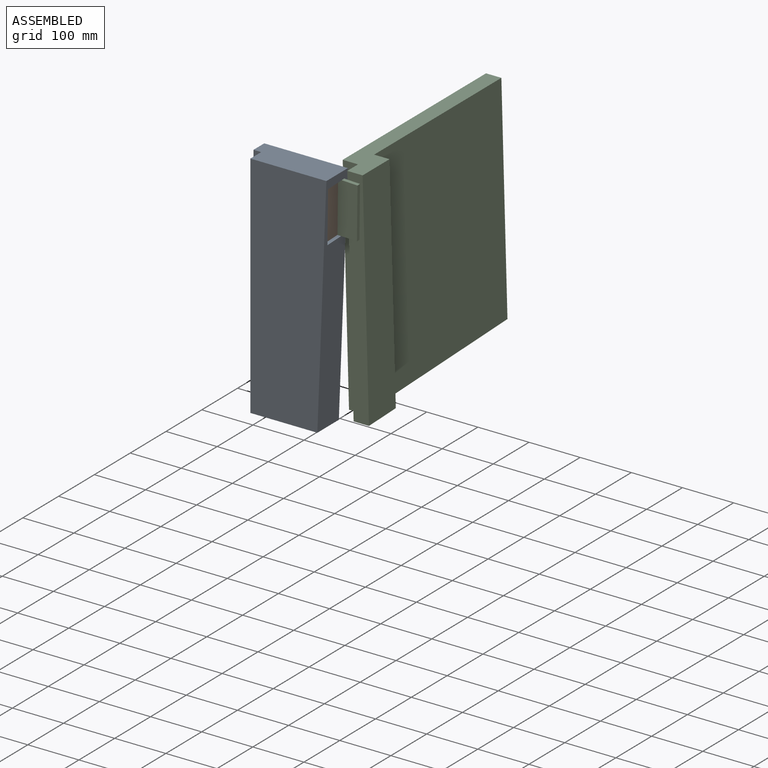
[diagram: assembled view]
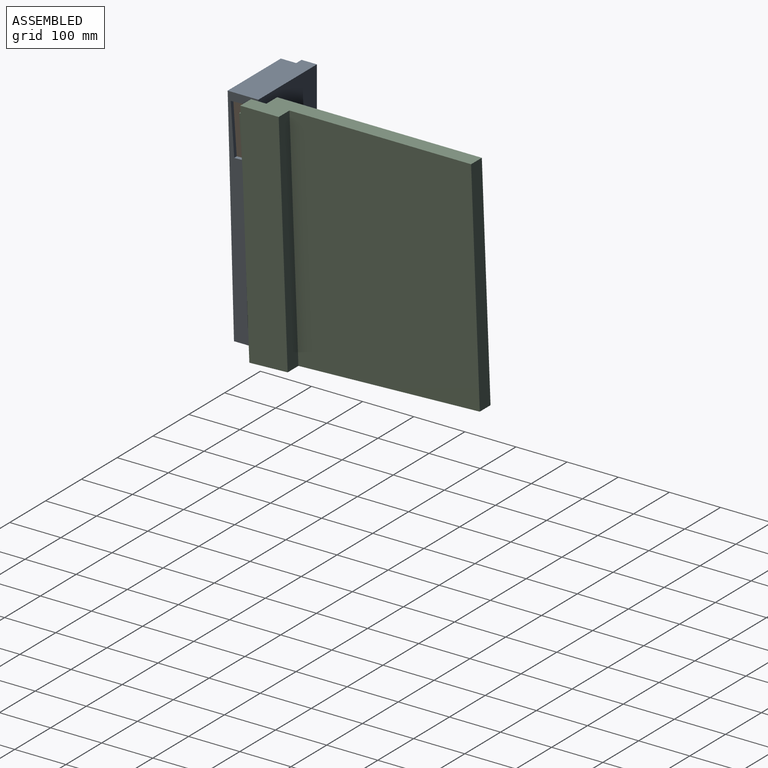
[diagram: assembled view, second angle]
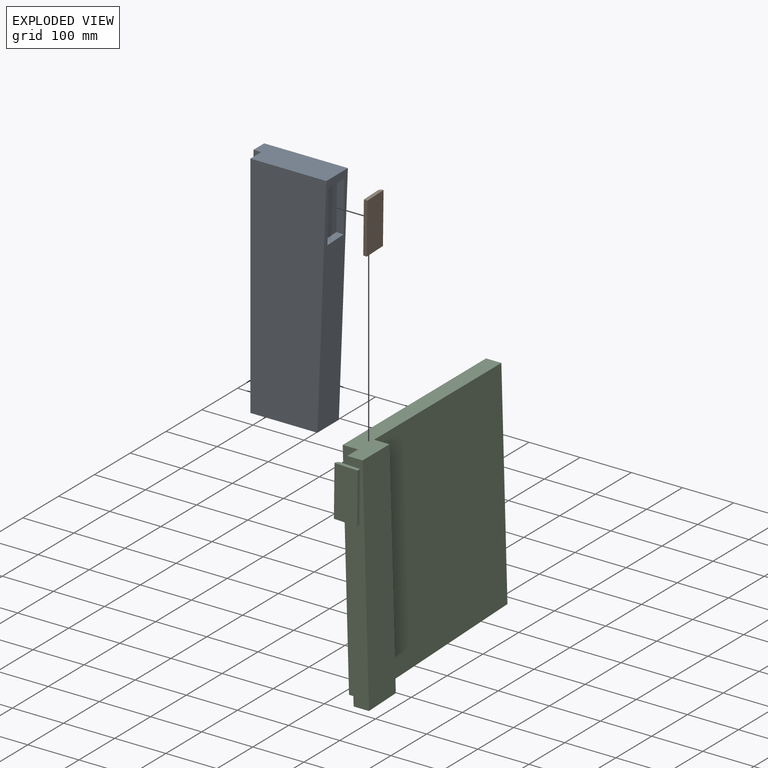
[diagram: exploded view]
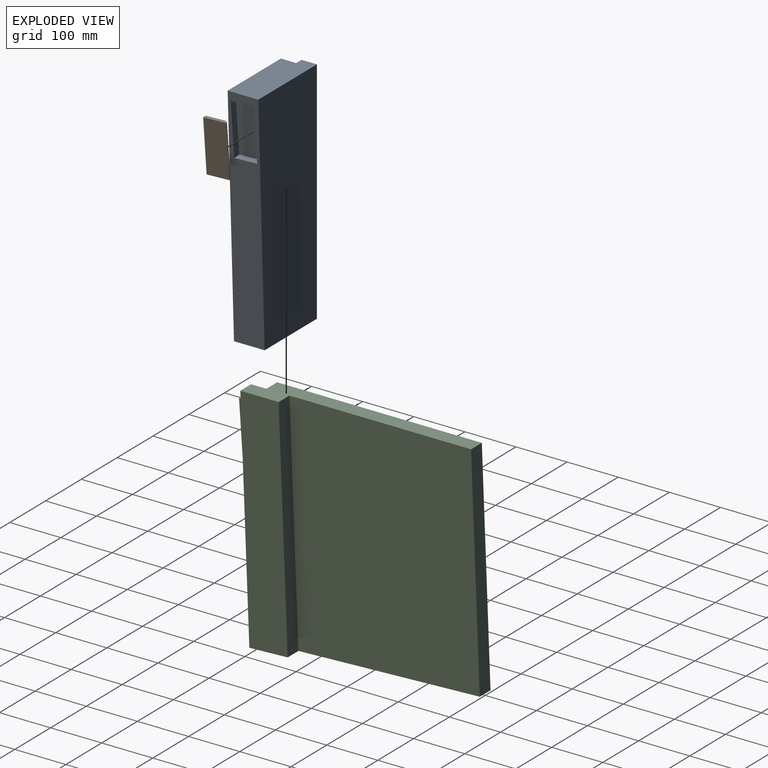
[diagram: exploded view, second angle]
ASSEMBLY  parts=3 mates=2
PART A: 13 faces, bbox 163.6x60x449.7 mm
  f0: plane 449.65x15mm, normal (0,-1,0), area 6744.8mm2, adj f1,f2,f3,f10
  f1: plane 163.6x60mm, normal (0,0,1), area 9366.2mm2, adj f0,f2,f4,f5,f10,f11
  f2: plane 449.65x30mm, normal (-1,0,0), area 13489.6mm2, adj f0,f1,f3,f5
  f3: plane 145.94x60mm, normal (0,0,-1), area 8306.2mm2, adj f0,f2,f4,f5,f10,f11
  f4: plane 449.65x60mm, normal (1,0,-0.04), area 22428mm2, adj f1,f3,f5,f6,f7,f8,f11,f12
  f5: plane 449.65x163.6mm, normal (0,1,0), area 69592.6mm2, adj f1,f2,f3,f4
  f6: plane 44.97x14.06mm, normal (0.04,-0.04,1), area 630mm2, adj f4,f7,f9,f12
  f7: plane 101.99x17.98mm, normal (0,-1,-0.04), area 1422.4mm2, adj f4,f6,f8,f9
  f8: plane 44.97x14.06mm, normal (-0.04,0.04,-1), area 630mm2, adj f4,f7,f9,f12
  f9: plane 103.21x48.95mm, normal (1,0,-0.04), area 4572mm2, adj f6,f7,f8,f12
  f10: plane 449.65x30mm, normal (-1,0,0), area 13489.6mm2, adj f0,f1,f3,f11
  f11: plane 449.65x148.6mm, normal (0,-1,0), area 62847.8mm2, adj f1,f3,f4,f10
  f12: plane 101.99x17.98mm, normal (0,1,0.04), area 1422.4mm2, adj f4,f6,f8,f9
PART B: 6 faces, bbox 11x49x103.3 mm
  f0: plane 44.97x7.06mm, normal (-0.04,0.04,-1), area 304.5mm2, adj f1,f3,f4,f5
  f1: plane 101.72x10.98mm, normal (0,-1,-0.04), area 711.2mm2, adj f0,f2,f3,f4
  f2: plane 44.97x7.06mm, normal (0.04,-0.04,1), area 304.5mm2, adj f1,f3,f4,f5
  f3: plane 102.93x41.96mm, normal (-1,0,0.04), area 3860.8mm2, adj f0,f1,f2,f5
  f4: plane 103.21x48.95mm, normal (1,0,-0.04), area 4572mm2, adj f0,f1,f2,f5
  f5: cylinder r=7mm len=101.56mm, axis (-0.04,0.04,-1), area 1117.2mm2, adj f0,f2,f3,f4
PART C: 16 faces, bbox 446.7x60x466.5 mm
  f0: plane 432.77x30mm, normal (1,0,-0.04), area 12993.2mm2, adj f2,f5,f7,f15
  f1: plane 452.6x92.49mm, normal (0,-1,0), area 33639.5mm2, adj f3,f5,f6,f15
  f2: plane 464.18x416.7mm, normal (0,1,0), area 176385.3mm2, adj f0,f5,f8,f15
  f3: plane 449.65x30mm, normal (-1,0,0.04), area 11216.3mm2, adj f1,f4,f5,f9,f10,f11,f15
  f4: plane 450.83x47.6mm, normal (0,1,0), area 13482.3mm2, adj f3,f5,f8,f12,f15
  f5: plane 429.67x60mm, normal (-0.04,0,-1), area 14250mm2, adj f0,f1,f2,f3,f4,f6,f7,f8
  f6: plane 446.71x30mm, normal (1,0,-0.04), area 13411.6mm2, adj f1,f5,f7,f15
  f7: plane 460.65x371.73mm, normal (0,-1,0), area 156228.1mm2, adj f0,f5,f6,f15
  f8: plane 448.48x30mm, normal (-1,0,0.04), area 13464.6mm2, adj f2,f4,f5,f15
  f9: plane 44.97x7.05mm, normal (-0.04,0.04,-1), area 304.5mm2, adj f3,f11,f12,f13,f14
  f10: plane 44.97x7.05mm, normal (0.04,-0.04,1), area 304.5mm2, adj f3,f11,f12,f13,f14
  f11: plane 101.72x10.98mm, normal (0,-1,-0.04), area 711.2mm2, adj f3,f9,f10,f13
  f12: plane 102.13x17.51mm, normal (1,0,-0.04), area 1577.1mm2, adj f4,f9,f10,f14
  f13: plane 103.21x48.95mm, normal (-1,0,0.04), area 4572mm2, adj f9,f10,f11,f14
  f14: cylinder r=7mm len=101.99mm, axis (-0.04,0.04,-1), area 1117.2mm2, adj f9,f10,f12,f13
  f15: plane 429.01x60mm, normal (0.08,0,1), area 14261mm2, adj f0,f1,f2,f3,f4,f6,f7,f8
PLACE A t=(-12.25,92.31,65.27)mm
PLACE B t=(-12.25,92.31,65.27)mm fixed
PLACE C rot(axis=(0.04,-0.04,1),90.1deg) t=(127.31,-2.54,56.06)mm
MATE revolute C.f14 <-> B.f5  axis (0.04,-0.04,1) through (143.76,75.82,1048.39)mm
MATE fastened A.f9 <-> B.f3  axis (1,0,-0.04) through (132.72,41.84,945.73)mm
